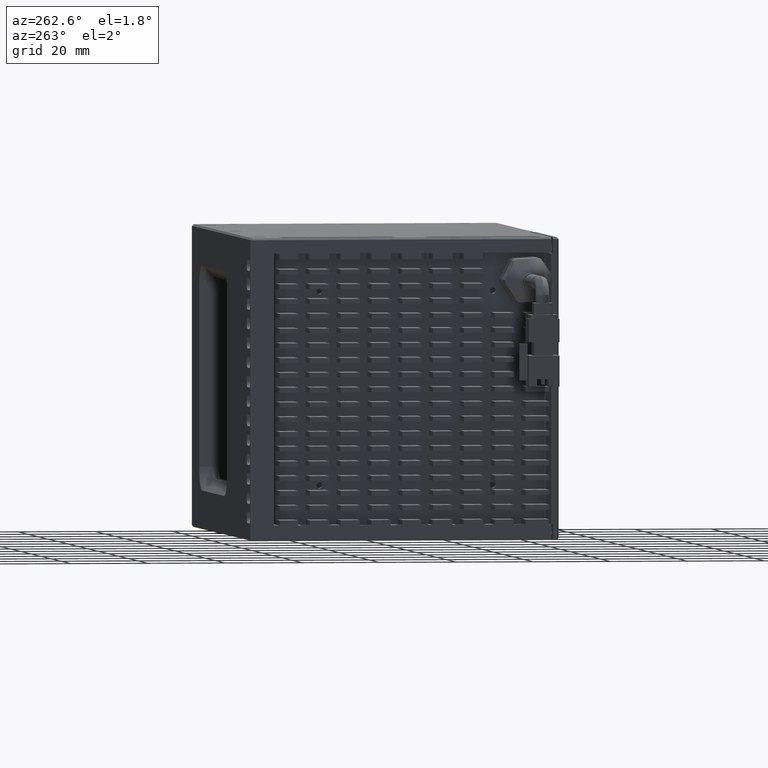
[diagram: clean part render]
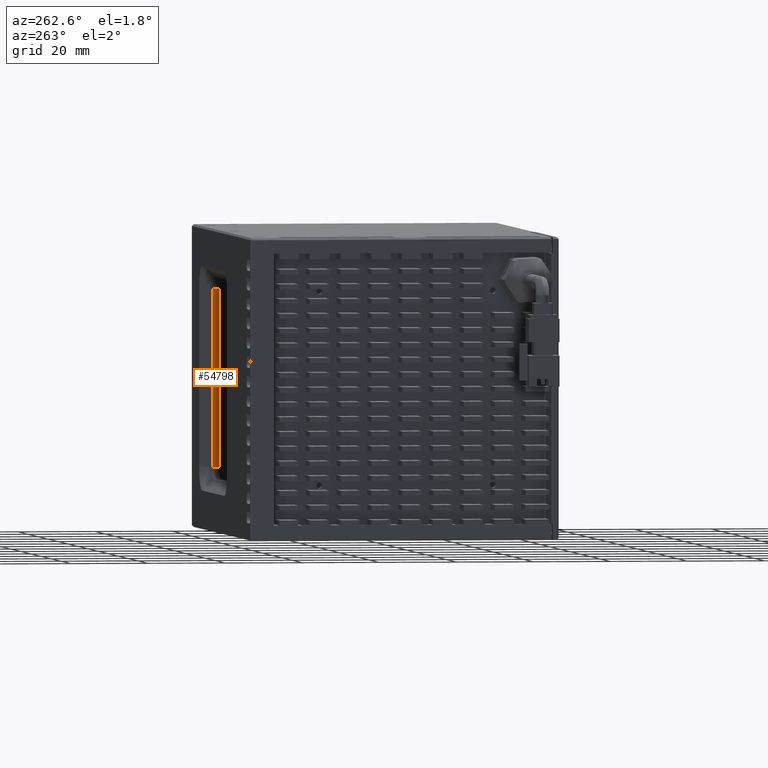
[diagram: same view with one face highlighted and labeled with its STEP entity id]
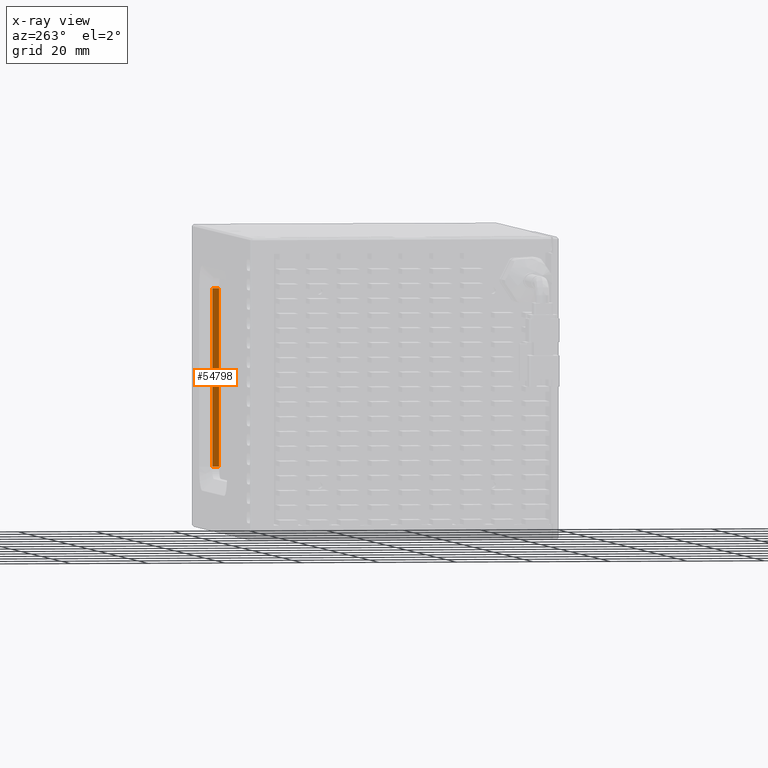
[diagram: x-ray of the same camera — body ghosted, the highlighted face saturated]
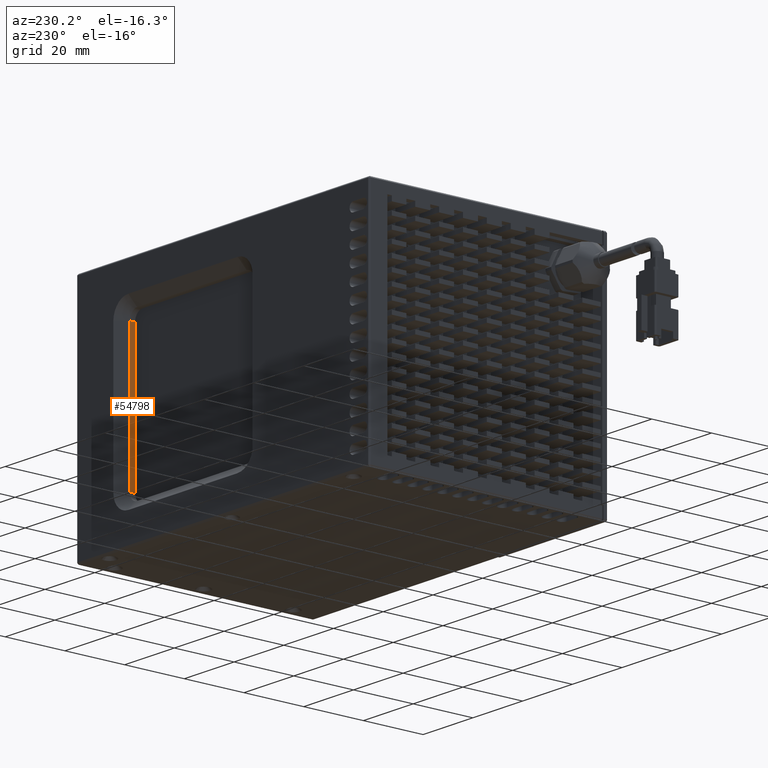
[diagram: same view with one face highlighted and labeled with its STEP entity id]
A machine part, auxiliary view. The second image highlights one B-rep face of the part: STEP entity #54798.
The next image is the same camera in x-ray: the body ghosted, the highlighted face saturated — about 0% of this face is hidden behind the body in this view.
A second angle (auxiliary view) of the same face is appended — the face is thin or edge-on in the first view.
In plain terms, the highlighted planar face has unit normal (-1, 0, -0).
Its self-contained STEP definition (entity closure, byte-faithful):
#2434 = VECTOR ( 'NONE', #26387, 1000.000000000000000 ) ;
#2539 = DIRECTION ( 'NONE',  ( -1.177236761232564000E-016, -1.000000000000000000, -2.068595200770913200E-017 ) ) ;
#5091 = LINE ( 'NONE', #62140, #34339 ) ;
#5372 = VECTOR ( 'NONE', #2539, 1000.000000000000000 ) ;
#5712 = VERTEX_POINT ( 'NONE', #6476 ) ;
#6476 = CARTESIAN_POINT ( 'NONE',  ( 27.03944640264668900, 59.08191075173277800, 16.00000000000955000 ) ) ;
#8569 = CARTESIAN_POINT ( 'NONE',  ( 27.03944640265396900, 62.08191075172209100, 16.00000000000955000 ) ) ;
#11143 = FACE_OUTER_BOUND ( 'NONE', #52789, .T. ) ;
#11721 = ORIENTED_EDGE ( 'NONE', *, *, #44836, .T. ) ;
#13820 = AXIS2_PLACEMENT_3D ( 'NONE', #8569, #47012, #14139 ) ;
#14139 = DIRECTION ( 'NONE',  ( 1.177236761232564000E-016, 1.000000000000000000, 2.068595200770913200E-017 ) ) ;
#22869 = VERTEX_POINT ( 'NONE', #52845 ) ;
#25357 = VECTOR ( 'NONE', #35751, 1000.000000000000000 ) ;
#26387 = DIRECTION ( 'NONE',  ( 2.317037443647223400E-016, 2.068595200770910400E-017, -1.000000000000000000 ) ) ;
#29238 = DIRECTION ( 'NONE',  ( 1.177236761232564000E-016, 1.000000000000000000, 2.068595200770913200E-017 ) ) ;
#34339 = VECTOR ( 'NONE', #29238, 1000.000000000000000 ) ;
#35751 = DIRECTION ( 'NONE',  ( -2.317037443647223400E-016, -2.068595200770910400E-017, 1.000000000000000000 ) ) ;
#42860 = ORIENTED_EDGE ( 'NONE', *, *, #52577, .T. ) ;
#43934 = EDGE_CURVE ( 'NONE', #5712, #67975, #63887, .T. ) ;
#44836 = EDGE_CURVE ( 'NONE', #71071, #5712, #46225, .T. ) ;
#45189 = PLANE ( 'NONE',  #13820 ) ;
#46225 = LINE ( 'NONE', #47976, #2434 ) ;
#47012 = DIRECTION ( 'NONE',  ( -1.000000000000000000, 1.177236761232564000E-016, -2.317037443647223400E-016 ) ) ;
#47976 = CARTESIAN_POINT ( 'NONE',  ( 27.03944640265396900, 59.08191075172209100, 16.00000000000955000 ) ) ;
#52577 = EDGE_CURVE ( 'NONE', #22869, #71071, #5091, .T. ) ;
#52595 = ORIENTED_EDGE ( 'NONE', *, *, #59328, .T. ) ;
#52789 = EDGE_LOOP ( 'NONE', ( #61080, #52595, #42860, #11721 ) ) ;
#52845 = CARTESIAN_POINT ( 'NONE',  ( 27.03944640265395800, 57.28191075172208700, 62.00000000000956400 ) ) ;
#53956 = CARTESIAN_POINT ( 'NONE',  ( 27.03944640265396900, 57.28191075172208700, 16.00000000000955000 ) ) ;
#54265 = CARTESIAN_POINT ( 'NONE',  ( 27.03944640263939900, 59.08191075174345700, 62.00000000000956400 ) ) ;
#54798 = ADVANCED_FACE ( 'NONE', ( #11143 ), #45189, .T. ) ;
#57897 = CARTESIAN_POINT ( 'NONE',  ( 27.03944640265395400, 57.28191075172208700, 75.00000000000957800 ) ) ;
#59328 = EDGE_CURVE ( 'NONE', #67975, #22869, #69211, .T. ) ;
#61080 = ORIENTED_EDGE ( 'NONE', *, *, #43934, .T. ) ;
#62140 = CARTESIAN_POINT ( 'NONE',  ( 27.03944640265395800, 62.08191075172209100, 62.00000000000956400 ) ) ;
#63887 = LINE ( 'NONE', #68341, #5372 ) ;
#67975 = VERTEX_POINT ( 'NONE', #53956 ) ;
#68341 = CARTESIAN_POINT ( 'NONE',  ( 27.03944640265396900, 62.08191075172209100, 16.00000000000955000 ) ) ;
#69211 = LINE ( 'NONE', #57897, #25357 ) ;
#71071 = VERTEX_POINT ( 'NONE', #54265 ) ;